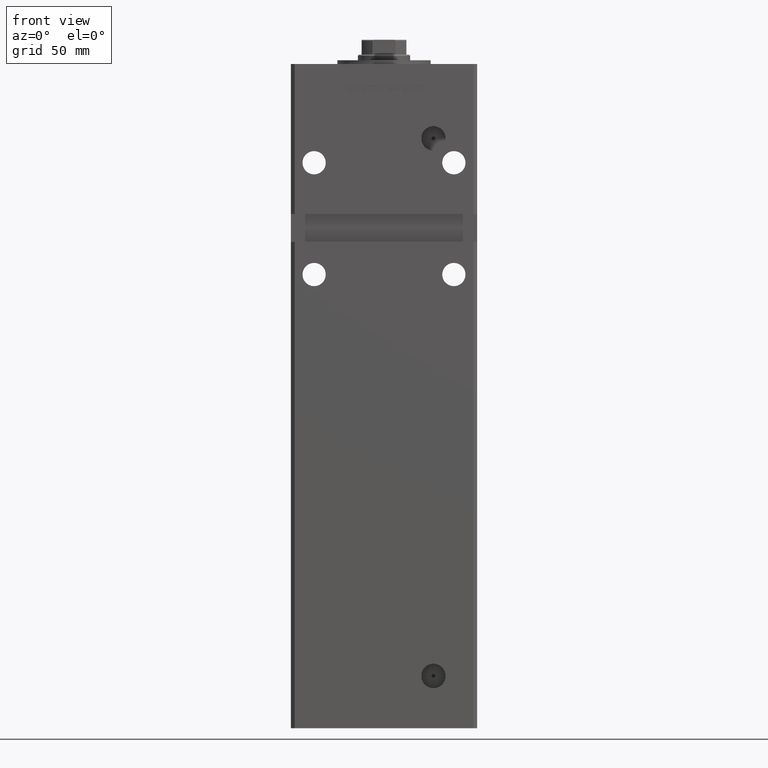
[diagram: clean part render]
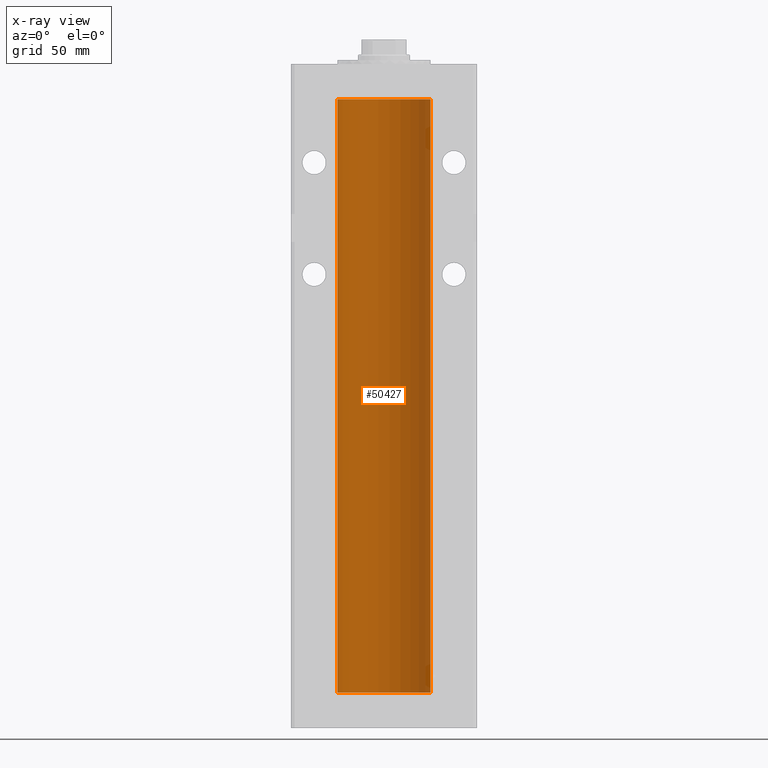
[diagram: x-ray — body ghosted, one internal face saturated and labeled with its STEP entity id]
A machine part, front view, then the same camera in x-ray: the body is ghosted and one INTERNAL B-rep face — a face not visible from any outside direction — is saturated and labeled: STEP entity #50427.
In plain terms, the highlighted cylindrical surface (partial cylindrical patch) has radius 25 mm, axis along (-0, -0, -1).
Its self-contained STEP definition (entity closure, byte-faithful):
#2124 = ORIENTED_EDGE ( 'NONE', *, *, #21833, .F. ) ;
#9005 = VERTEX_POINT ( 'NONE', #17952 ) ;
#9987 = EDGE_CURVE ( 'NONE', #9005, #16887, #36202, .T. ) ;
#11183 = CARTESIAN_POINT ( 'NONE',  ( 0.000000000000000000, 0.000000000000000000, 318.5000000000000000 ) ) ;
#11414 = CARTESIAN_POINT ( 'NONE',  ( 25.00000000000000000, 3.061616997868383043E-15, 0.000000000000000000 ) ) ;
#12356 = EDGE_CURVE ( 'NONE', #25676, #34307, #12854, .T. ) ;
#12854 = LINE ( 'NONE', #32976, #43485 ) ;
#13157 = CARTESIAN_POINT ( 'NONE',  ( 0.000000000000000000, 0.000000000000000000, 0.000000000000000000 ) ) ;
#13424 = DIRECTION ( 'NONE',  ( 1.000000000000000000, 0.000000000000000000, 0.000000000000000000 ) ) ;
#14564 = AXIS2_PLACEMENT_3D ( 'NONE', #39775, #40303, #31976 ) ;
#16887 = VERTEX_POINT ( 'NONE', #11414 ) ;
#17452 = DIRECTION ( 'NONE',  ( -0.000000000000000000, 0.000000000000000000, 1.000000000000000000 ) ) ;
#17952 = CARTESIAN_POINT ( 'NONE',  ( 25.00000000000000000, 3.061616997868383043E-15, 318.5000000000000000 ) ) ;
#19143 = CARTESIAN_POINT ( 'NONE',  ( -25.00000000000000000, 0.000000000000000000, 0.000000000000000000 ) ) ;
#19568 = CIRCLE ( 'NONE', #42836, 25.00000000000000000 ) ;
#20297 = EDGE_CURVE ( 'NONE', #9005, #25676, #19568, .T. ) ;
#20581 = AXIS2_PLACEMENT_3D ( 'NONE', #13157, #45664, #13424 ) ;
#21281 = EDGE_LOOP ( 'NONE', ( #30242, #44413, #52226, #2124 ) ) ;
#21443 = DIRECTION ( 'NONE',  ( -0.000000000000000000, -0.000000000000000000, -1.000000000000000000 ) ) ;
#21741 = DIRECTION ( 'NONE',  ( 1.000000000000000000, 0.000000000000000000, 0.000000000000000000 ) ) ;
#21833 = EDGE_CURVE ( 'NONE', #16887, #34307, #48050, .T. ) ;
#24372 = CARTESIAN_POINT ( 'NONE',  ( 25.00000000000000000, 3.061616997868383043E-15, 318.5000000000000000 ) ) ;
#25676 = VERTEX_POINT ( 'NONE', #49333 ) ;
#30242 = ORIENTED_EDGE ( 'NONE', *, *, #9987, .F. ) ;
#31976 = DIRECTION ( 'NONE',  ( -1.000000000000000000, 0.000000000000000000, 0.000000000000000000 ) ) ;
#32976 = CARTESIAN_POINT ( 'NONE',  ( -25.00000000000000000, 0.000000000000000000, 318.5000000000000000 ) ) ;
#34307 = VERTEX_POINT ( 'NONE', #19143 ) ;
#35710 = VECTOR ( 'NONE', #40751, 1000.000000000000000 ) ;
#36020 = FACE_OUTER_BOUND ( 'NONE', #21281, .T. ) ;
#36202 = LINE ( 'NONE', #24372, #35710 ) ;
#39775 = CARTESIAN_POINT ( 'NONE',  ( 0.000000000000000000, 0.000000000000000000, 318.5000000000000000 ) ) ;
#40303 = DIRECTION ( 'NONE',  ( -0.000000000000000000, -0.000000000000000000, -1.000000000000000000 ) ) ;
#40751 = DIRECTION ( 'NONE',  ( -0.000000000000000000, -0.000000000000000000, -1.000000000000000000 ) ) ;
#42836 = AXIS2_PLACEMENT_3D ( 'NONE', #11183, #17452, #21741 ) ;
#43485 = VECTOR ( 'NONE', #21443, 1000.000000000000000 ) ;
#44413 = ORIENTED_EDGE ( 'NONE', *, *, #20297, .T. ) ;
#45664 = DIRECTION ( 'NONE',  ( -0.000000000000000000, 0.000000000000000000, 1.000000000000000000 ) ) ;
#48050 = CIRCLE ( 'NONE', #20581, 25.00000000000000000 ) ;
#49333 = CARTESIAN_POINT ( 'NONE',  ( -25.00000000000000000, 0.000000000000000000, 318.5000000000000000 ) ) ;
#50427 = ADVANCED_FACE ( 'NONE', ( #36020 ), #52671, .F. ) ;
#52226 = ORIENTED_EDGE ( 'NONE', *, *, #12356, .T. ) ;
#52671 = CYLINDRICAL_SURFACE ( 'NONE', #14564, 25.00000000000000000 ) ;